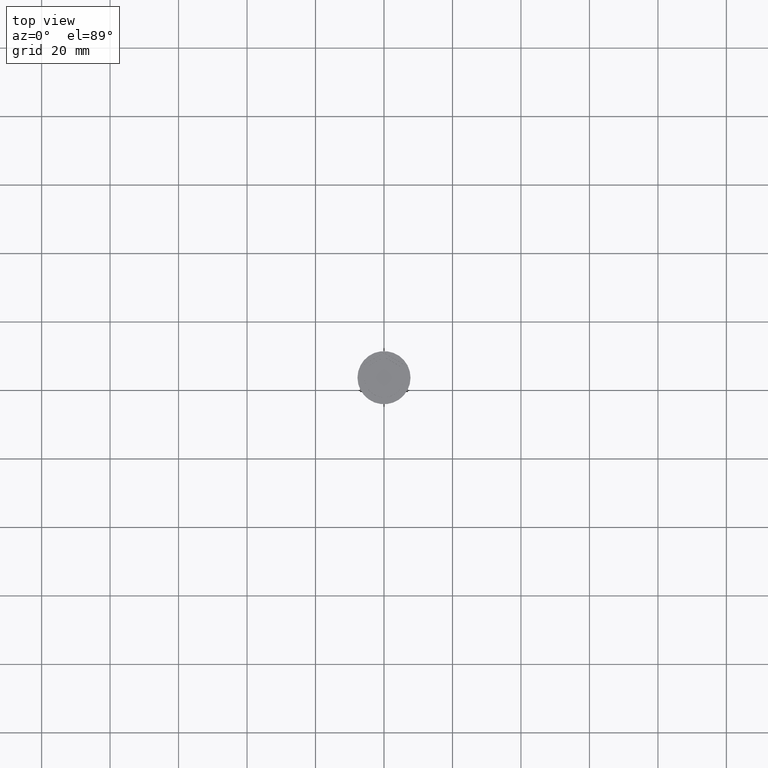
[diagram: clean part render]
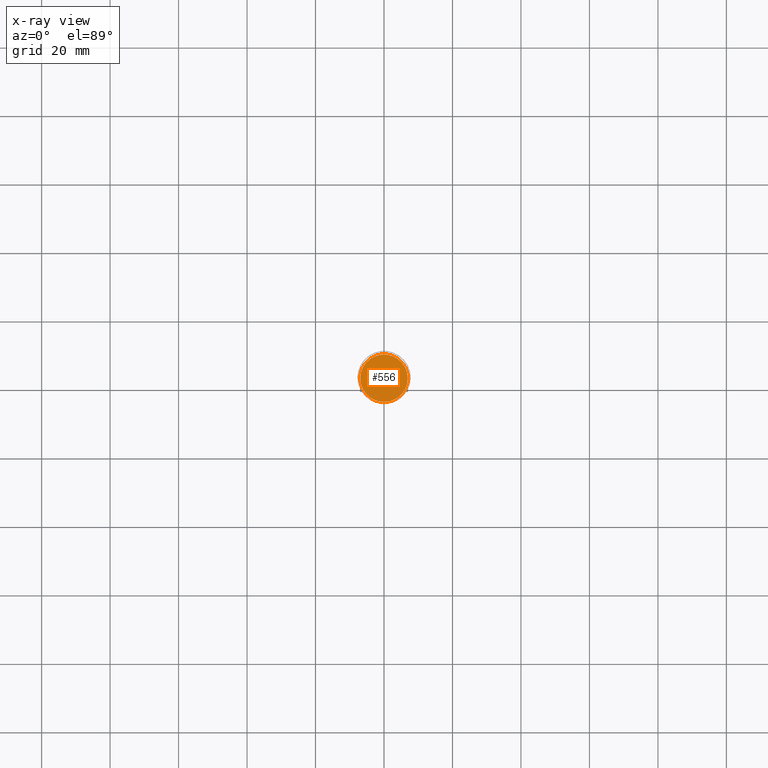
[diagram: x-ray — body ghosted, one internal face saturated and labeled with its STEP entity id]
A machine part, top view, then the same camera in x-ray: the body is ghosted and one INTERNAL B-rep face — a face not visible from any outside direction — is saturated and labeled: STEP entity #556.
In plain terms, the highlighted planar face has unit normal (0, 0, -1).
Its self-contained STEP definition (entity closure, byte-faithful):
#149 = DIRECTION ( 'NONE',  ( -1.000000000000000000, 0.000000000000000000, -0.000000000000000000 ) ) ;
#273 = CARTESIAN_POINT ( 'NONE',  ( 0.000000000000000000, 0.000000000000000000, -10.50000000000000178 ) ) ;
#297 = VERTEX_POINT ( 'NONE', #1833 ) ;
#354 = DIRECTION ( 'NONE',  ( -0.000000000000000000, -0.000000000000000000, 1.000000000000000000 ) ) ;
#358 = CIRCLE ( 'NONE', #584, 6.950000000000001066 ) ;
#501 = AXIS2_PLACEMENT_3D ( 'NONE', #1181, #354, #1625 ) ;
#540 = CARTESIAN_POINT ( 'NONE',  ( 0.000000000000000000, 0.000000000000000000, -10.50000000000000178 ) ) ;
#556 = ADVANCED_FACE ( 'NONE', ( #2074 ), #1895, .F. ) ;
#577 = VERTEX_POINT ( 'NONE', #1786 ) ;
#584 = AXIS2_PLACEMENT_3D ( 'NONE', #540, #1980, #1393 ) ;
#629 = EDGE_CURVE ( 'NONE', #577, #297, #358, .T. ) ;
#1044 = ORIENTED_EDGE ( 'NONE', *, *, #1559, .T. ) ;
#1181 = CARTESIAN_POINT ( 'NONE',  ( 0.000000000000000000, 0.000000000000000000, -10.50000000000000178 ) ) ;
#1393 = DIRECTION ( 'NONE',  ( -1.000000000000000000, 0.000000000000000000, 0.000000000000000000 ) ) ;
#1401 = EDGE_LOOP ( 'NONE', ( #1906, #1044 ) ) ;
#1559 = EDGE_CURVE ( 'NONE', #297, #577, #2277, .T. ) ;
#1625 = DIRECTION ( 'NONE',  ( -1.000000000000000000, 0.000000000000000000, 0.000000000000000000 ) ) ;
#1786 = CARTESIAN_POINT ( 'NONE',  ( -6.950000000000001066, 0.000000000000000000, -10.50000000000000178 ) ) ;
#1833 = CARTESIAN_POINT ( 'NONE',  ( 6.950000000000001066, 8.694992273946209718E-16, -10.50000000000000178 ) ) ;
#1895 = PLANE ( 'NONE',  #2031 ) ;
#1906 = ORIENTED_EDGE ( 'NONE', *, *, #629, .T. ) ;
#1980 = DIRECTION ( 'NONE',  ( -0.000000000000000000, -0.000000000000000000, 1.000000000000000000 ) ) ;
#2031 = AXIS2_PLACEMENT_3D ( 'NONE', #273, #2157, #149 ) ;
#2074 = FACE_OUTER_BOUND ( 'NONE', #1401, .T. ) ;
#2157 = DIRECTION ( 'NONE',  ( 0.000000000000000000, 0.000000000000000000, -1.000000000000000000 ) ) ;
#2277 = CIRCLE ( 'NONE', #501, 6.950000000000001066 ) ;